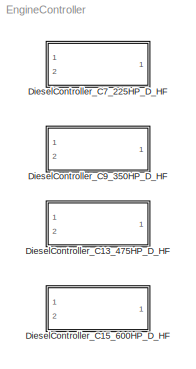
MODEL EngineController
KIND model
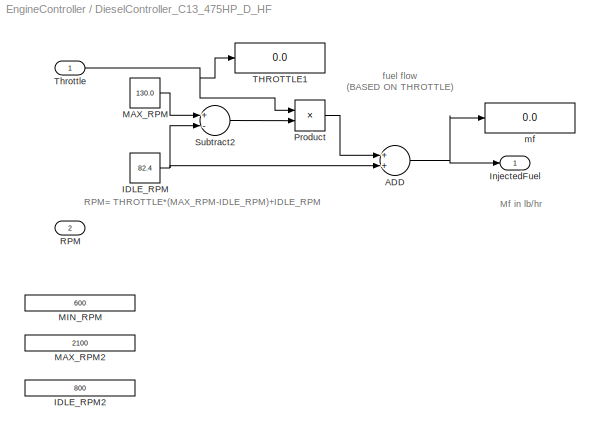
BLOCK [SubSystem] DieselController_C13_475HP_D_HF
  FunctionWithSeparateData = off
  MaskHideContents = off
  MinAlgLoopOccurrences = off
  Opaque = off
  Ports = [2, 1]
  PropExecContextOutsideSubsystem = off
  RTWSystemCode = Auto
  RequestExecContextInheritance = off
  SID = 59
BLOCK [Sum] DieselController_C13_475HP_D_HF/ADD
  InputSameDT = off
  OutDataTypeStr = Inherit: Inherit via internal rule
  Ports = [2, 1]
  SID = 62
  SaturateOnIntegerOverflow = off
BLOCK [Constant] DieselController_C13_475HP_D_HF/IDLE_RPM
  SID = 63
  Value = 82.4
BLOCK [Constant] DieselController_C13_475HP_D_HF/IDLE_RPM2
  SID = 64
  Value = 800
BLOCK [Outport] DieselController_C13_475HP_D_HF/InjectedFuel
  IconDisplay = Port number
  SID = 72
BLOCK [Constant] DieselController_C13_475HP_D_HF/MAX_RPM
  SID = 65
  Value = 130.0
BLOCK [Constant] DieselController_C13_475HP_D_HF/MAX_RPM2
  SID = 66
  Value = 2100
BLOCK [Constant] DieselController_C13_475HP_D_HF/MIN_RPM
  SID = 67
  Value = 600
BLOCK [Product] DieselController_C13_475HP_D_HF/Product
  InputSameDT = off
  OutDataTypeStr = Inherit: Inherit via internal rule
  Ports = [2, 1]
  SID = 68
  SaturateOnIntegerOverflow = off
BLOCK [Inport] DieselController_C13_475HP_D_HF/RPM
  IconDisplay = Port number
  Port = 2
  SID = 61
BLOCK [Sum] DieselController_C13_475HP_D_HF/Subtract2
  InputSameDT = off
  Inputs = +-
  OutDataTypeStr = Inherit: Inherit via internal rule
  Ports = [2, 1]
  SID = 69
  SaturateOnIntegerOverflow = off
BLOCK [Display] DieselController_C13_475HP_D_HF/THROTTLE1
  Decimation = 1
  Lockdown = off
  Ports = [1]
  SID = 70
BLOCK [Inport] DieselController_C13_475HP_D_HF/Throttle
  IconDisplay = Port number
  SID = 60
BLOCK [Display] DieselController_C13_475HP_D_HF/mf
  Decimation = 1
  Lockdown = off
  Ports = [1]
  SID = 71
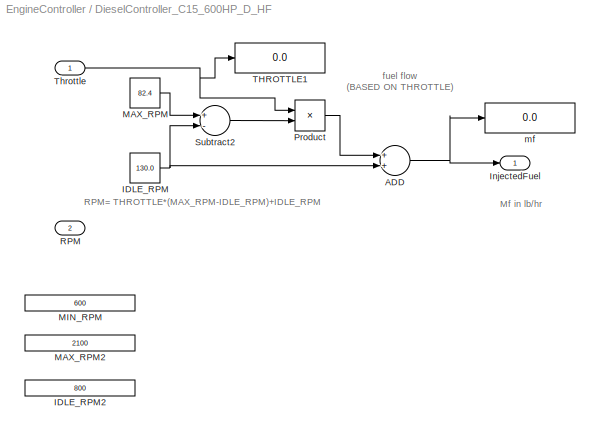
BLOCK [SubSystem] DieselController_C15_600HP_D_HF
  FunctionWithSeparateData = off
  MaskHideContents = off
  MinAlgLoopOccurrences = off
  Opaque = off
  Ports = [2, 1]
  PropExecContextOutsideSubsystem = off
  RTWSystemCode = Auto
  RequestExecContextInheritance = off
  SID = 73
BLOCK [Sum] DieselController_C15_600HP_D_HF/ADD
  InputSameDT = off
  OutDataTypeStr = Inherit: Inherit via internal rule
  Ports = [2, 1]
  SID = 76
  SaturateOnIntegerOverflow = off
BLOCK [Constant] DieselController_C15_600HP_D_HF/IDLE_RPM
  SID = 77
  Value = 130.0
BLOCK [Constant] DieselController_C15_600HP_D_HF/IDLE_RPM2
  SID = 78
  Value = 800
BLOCK [Outport] DieselController_C15_600HP_D_HF/InjectedFuel
  IconDisplay = Port number
  SID = 86
BLOCK [Constant] DieselController_C15_600HP_D_HF/MAX_RPM
  SID = 79
  Value = 82.4
BLOCK [Constant] DieselController_C15_600HP_D_HF/MAX_RPM2
  SID = 80
  Value = 2100
BLOCK [Constant] DieselController_C15_600HP_D_HF/MIN_RPM
  SID = 81
  Value = 600
BLOCK [Product] DieselController_C15_600HP_D_HF/Product
  InputSameDT = off
  OutDataTypeStr = Inherit: Inherit via internal rule
  Ports = [2, 1]
  SID = 82
  SaturateOnIntegerOverflow = off
BLOCK [Inport] DieselController_C15_600HP_D_HF/RPM
  IconDisplay = Port number
  Port = 2
  SID = 75
BLOCK [Sum] DieselController_C15_600HP_D_HF/Subtract2
  InputSameDT = off
  Inputs = +-
  OutDataTypeStr = Inherit: Inherit via internal rule
  Ports = [2, 1]
  SID = 83
  SaturateOnIntegerOverflow = off
BLOCK [Display] DieselController_C15_600HP_D_HF/THROTTLE1
  Decimation = 1
  Lockdown = off
  Ports = [1]
  SID = 84
BLOCK [Inport] DieselController_C15_600HP_D_HF/Throttle
  IconDisplay = Port number
  SID = 74
BLOCK [Display] DieselController_C15_600HP_D_HF/mf
  Decimation = 1
  Lockdown = off
  Ports = [1]
  SID = 85
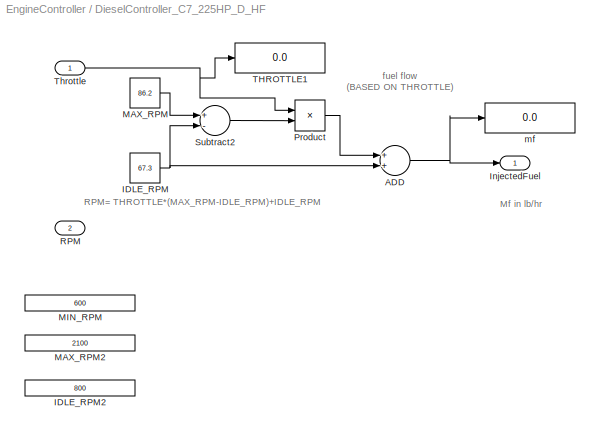
BLOCK [SubSystem] DieselController_C7_225HP_D_HF
  FunctionWithSeparateData = off
  MaskHideContents = off
  MinAlgLoopOccurrences = off
  Opaque = off
  Ports = [2, 1]
  PropExecContextOutsideSubsystem = off
  RTWSystemCode = Auto
  RequestExecContextInheritance = off
  SID = 1
BLOCK [Sum] DieselController_C7_225HP_D_HF/ADD
  InputSameDT = off
  OutDataTypeStr = Inherit: Inherit via internal rule
  Ports = [2, 1]
  SID = 29
  SaturateOnIntegerOverflow = off
BLOCK [Constant] DieselController_C7_225HP_D_HF/IDLE_RPM
  SID = 30
  Value = 67.3
BLOCK [Constant] DieselController_C7_225HP_D_HF/IDLE_RPM2
  SID = 42
  Value = 800
BLOCK [Outport] DieselController_C7_225HP_D_HF/InjectedFuel
  IconDisplay = Port number
  SID = 39
BLOCK [Constant] DieselController_C7_225HP_D_HF/MAX_RPM
  SID = 31
  Value = 86.2
BLOCK [Constant] DieselController_C7_225HP_D_HF/MAX_RPM2
  SID = 43
  Value = 2100
BLOCK [Constant] DieselController_C7_225HP_D_HF/MIN_RPM
  SID = 44
  Value = 600
BLOCK [Product] DieselController_C7_225HP_D_HF/Product
  InputSameDT = off
  OutDataTypeStr = Inherit: Inherit via internal rule
  Ports = [2, 1]
  SID = 33
  SaturateOnIntegerOverflow = off
BLOCK [Inport] DieselController_C7_225HP_D_HF/RPM
  IconDisplay = Port number
  Port = 2
  SID = 28
BLOCK [Sum] DieselController_C7_225HP_D_HF/Subtract2
  InputSameDT = off
  Inputs = +-
  OutDataTypeStr = Inherit: Inherit via internal rule
  Ports = [2, 1]
  SID = 37
  SaturateOnIntegerOverflow = off
BLOCK [Display] DieselController_C7_225HP_D_HF/THROTTLE1
  Decimation = 1
  Lockdown = off
  Ports = [1]
  SID = 38
BLOCK [Inport] DieselController_C7_225HP_D_HF/Throttle
  IconDisplay = Port number
  SID = 27
BLOCK [Display] DieselController_C7_225HP_D_HF/mf
  Decimation = 1
  Lockdown = off
  Ports = [1]
  SID = 35
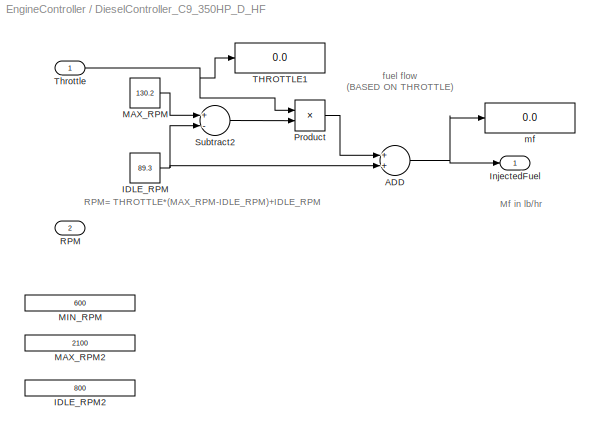
BLOCK [SubSystem] DieselController_C9_350HP_D_HF
  FunctionWithSeparateData = off
  MaskHideContents = off
  MinAlgLoopOccurrences = off
  Opaque = off
  Ports = [2, 1]
  PropExecContextOutsideSubsystem = off
  RTWSystemCode = Auto
  RequestExecContextInheritance = off
  SID = 45
BLOCK [Sum] DieselController_C9_350HP_D_HF/ADD
  InputSameDT = off
  OutDataTypeStr = Inherit: Inherit via internal rule
  Ports = [2, 1]
  SID = 48
  SaturateOnIntegerOverflow = off
BLOCK [Constant] DieselController_C9_350HP_D_HF/IDLE_RPM
  SID = 49
  Value = 89.3
BLOCK [Constant] DieselController_C9_350HP_D_HF/IDLE_RPM2
  SID = 50
  Value = 800
BLOCK [Outport] DieselController_C9_350HP_D_HF/InjectedFuel
  IconDisplay = Port number
  SID = 58
BLOCK [Constant] DieselController_C9_350HP_D_HF/MAX_RPM
  SID = 51
  Value = 130.2
BLOCK [Constant] DieselController_C9_350HP_D_HF/MAX_RPM2
  SID = 52
  Value = 2100
BLOCK [Constant] DieselController_C9_350HP_D_HF/MIN_RPM
  SID = 53
  Value = 600
BLOCK [Product] DieselController_C9_350HP_D_HF/Product
  InputSameDT = off
  OutDataTypeStr = Inherit: Inherit via internal rule
  Ports = [2, 1]
  SID = 54
  SaturateOnIntegerOverflow = off
BLOCK [Inport] DieselController_C9_350HP_D_HF/RPM
  IconDisplay = Port number
  Port = 2
  SID = 47
BLOCK [Sum] DieselController_C9_350HP_D_HF/Subtract2
  InputSameDT = off
  Inputs = +-
  OutDataTypeStr = Inherit: Inherit via internal rule
  Ports = [2, 1]
  SID = 55
  SaturateOnIntegerOverflow = off
BLOCK [Display] DieselController_C9_350HP_D_HF/THROTTLE1
  Decimation = 1
  Lockdown = off
  Ports = [1]
  SID = 56
BLOCK [Inport] DieselController_C9_350HP_D_HF/Throttle
  IconDisplay = Port number
  SID = 46
BLOCK [Display] DieselController_C9_350HP_D_HF/mf
  Decimation = 1
  Lockdown = off
  Ports = [1]
  SID = 57
ANNOTATION DieselController_C13_475HP_D_HF: Mf in lb/hr
ANNOTATION DieselController_C13_475HP_D_HF: RPM= THROTTLE*(MAX_RPM-IDLE_RPM)+IDLE_RPM
ANNOTATION DieselController_C13_475HP_D_HF: fuel flow \n(BASED ON THROTTLE)
ANNOTATION DieselController_C15_600HP_D_HF: Mf in lb/hr
ANNOTATION DieselController_C15_600HP_D_HF: RPM= THROTTLE*(MAX_RPM-IDLE_RPM)+IDLE_RPM
ANNOTATION DieselController_C15_600HP_D_HF: fuel flow \n(BASED ON THROTTLE)
ANNOTATION DieselController_C7_225HP_D_HF: Mf in lb/hr
ANNOTATION DieselController_C7_225HP_D_HF: RPM= THROTTLE*(MAX_RPM-IDLE_RPM)+IDLE_RPM
ANNOTATION DieselController_C7_225HP_D_HF: fuel flow \n(BASED ON THROTTLE)
ANNOTATION DieselController_C9_350HP_D_HF: Mf in lb/hr
ANNOTATION DieselController_C9_350HP_D_HF: RPM= THROTTLE*(MAX_RPM-IDLE_RPM)+IDLE_RPM
ANNOTATION DieselController_C9_350HP_D_HF: fuel flow \n(BASED ON THROTTLE)
NET DieselController_C13_475HP_D_HF/ADD:1 -> DieselController_C13_475HP_D_HF/InjectedFuel:1, DieselController_C13_475HP_D_HF/mf:1
NET DieselController_C13_475HP_D_HF/IDLE_RPM:1 -> DieselController_C13_475HP_D_HF/ADD:2, DieselController_C13_475HP_D_HF/Subtract2:2
LINE DieselController_C13_475HP_D_HF/MAX_RPM:1 -> DieselController_C13_475HP_D_HF/Subtract2:1
LINE DieselController_C13_475HP_D_HF/Product:1 -> DieselController_C13_475HP_D_HF/ADD:1
LINE DieselController_C13_475HP_D_HF/Subtract2:1 -> DieselController_C13_475HP_D_HF/Product:2
NET DieselController_C13_475HP_D_HF/Throttle:1 -> DieselController_C13_475HP_D_HF/Product:1, DieselController_C13_475HP_D_HF/THROTTLE1:1
NET DieselController_C15_600HP_D_HF/ADD:1 -> DieselController_C15_600HP_D_HF/InjectedFuel:1, DieselController_C15_600HP_D_HF/mf:1
NET DieselController_C15_600HP_D_HF/IDLE_RPM:1 -> DieselController_C15_600HP_D_HF/ADD:2, DieselController_C15_600HP_D_HF/Subtract2:2
LINE DieselController_C15_600HP_D_HF/MAX_RPM:1 -> DieselController_C15_600HP_D_HF/Subtract2:1
LINE DieselController_C15_600HP_D_HF/Product:1 -> DieselController_C15_600HP_D_HF/ADD:1
LINE DieselController_C15_600HP_D_HF/Subtract2:1 -> DieselController_C15_600HP_D_HF/Product:2
NET DieselController_C15_600HP_D_HF/Throttle:1 -> DieselController_C15_600HP_D_HF/Product:1, DieselController_C15_600HP_D_HF/THROTTLE1:1
NET DieselController_C7_225HP_D_HF/ADD:1 -> DieselController_C7_225HP_D_HF/InjectedFuel:1, DieselController_C7_225HP_D_HF/mf:1
NET DieselController_C7_225HP_D_HF/IDLE_RPM:1 -> DieselController_C7_225HP_D_HF/ADD:2, DieselController_C7_225HP_D_HF/Subtract2:2
LINE DieselController_C7_225HP_D_HF/MAX_RPM:1 -> DieselController_C7_225HP_D_HF/Subtract2:1
LINE DieselController_C7_225HP_D_HF/Product:1 -> DieselController_C7_225HP_D_HF/ADD:1
LINE DieselController_C7_225HP_D_HF/Subtract2:1 -> DieselController_C7_225HP_D_HF/Product:2
NET DieselController_C7_225HP_D_HF/Throttle:1 -> DieselController_C7_225HP_D_HF/Product:1, DieselController_C7_225HP_D_HF/THROTTLE1:1
NET DieselController_C9_350HP_D_HF/ADD:1 -> DieselController_C9_350HP_D_HF/InjectedFuel:1, DieselController_C9_350HP_D_HF/mf:1
NET DieselController_C9_350HP_D_HF/IDLE_RPM:1 -> DieselController_C9_350HP_D_HF/ADD:2, DieselController_C9_350HP_D_HF/Subtract2:2
LINE DieselController_C9_350HP_D_HF/MAX_RPM:1 -> DieselController_C9_350HP_D_HF/Subtract2:1
LINE DieselController_C9_350HP_D_HF/Product:1 -> DieselController_C9_350HP_D_HF/ADD:1
LINE DieselController_C9_350HP_D_HF/Subtract2:1 -> DieselController_C9_350HP_D_HF/Product:2
NET DieselController_C9_350HP_D_HF/Throttle:1 -> DieselController_C9_350HP_D_HF/Product:1, DieselController_C9_350HP_D_HF/THROTTLE1:1
note: NET lines group one-source signal fan-out (src -> all destinations, sorted); 1:1 wires keep LINE
